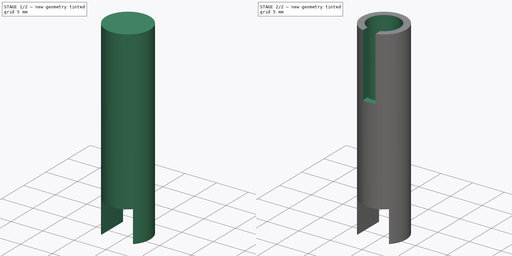
[diagram: build sequence overview — one tinted view per stage of 2, left to right]
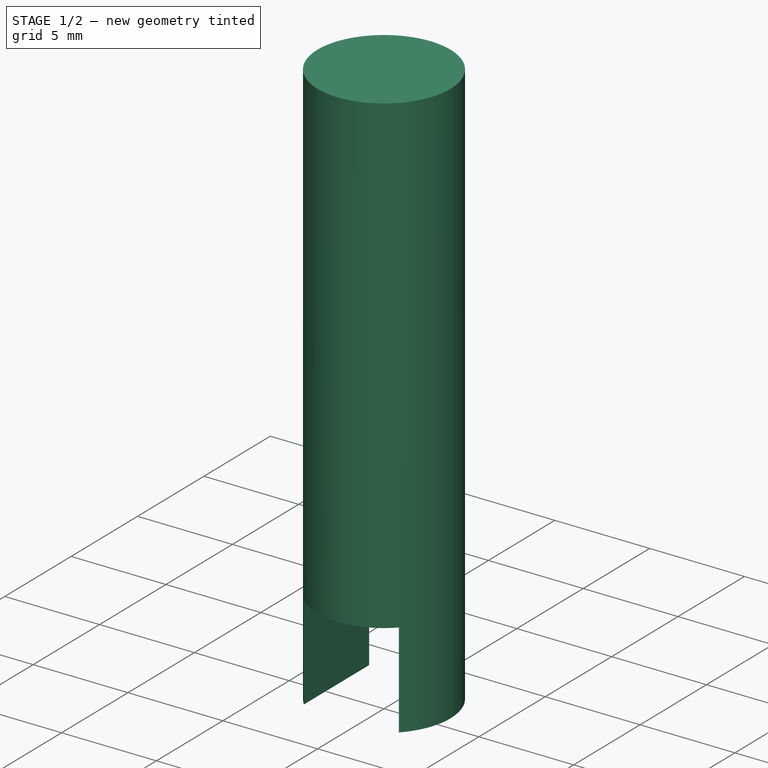
[diagram: stage 1 of 2 — iso view after this stage's code; geometry added in this stage tinted green]
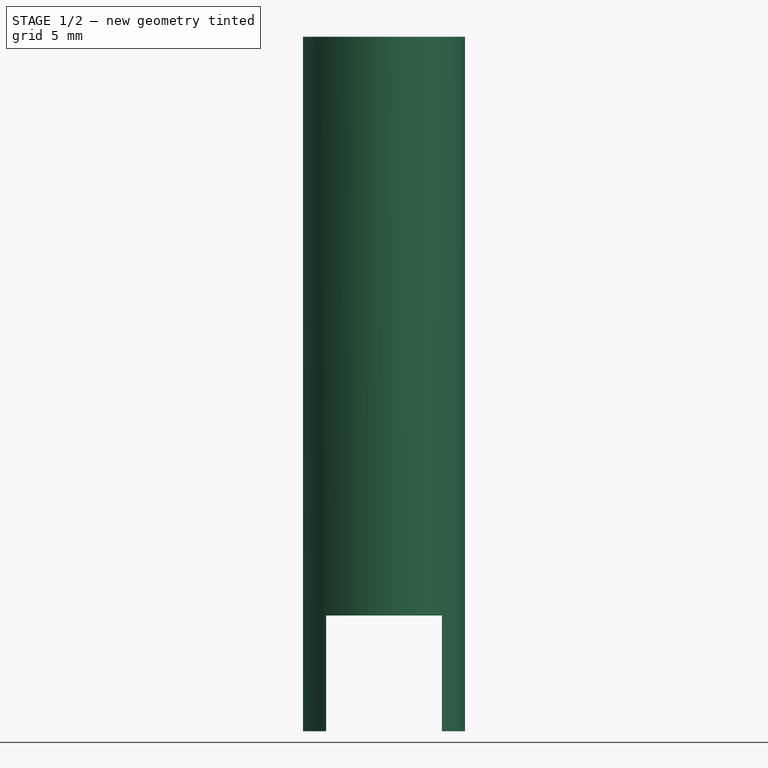
[diagram: stage 1 of 2 — front view after this stage's code; geometry added in this stage tinted green]
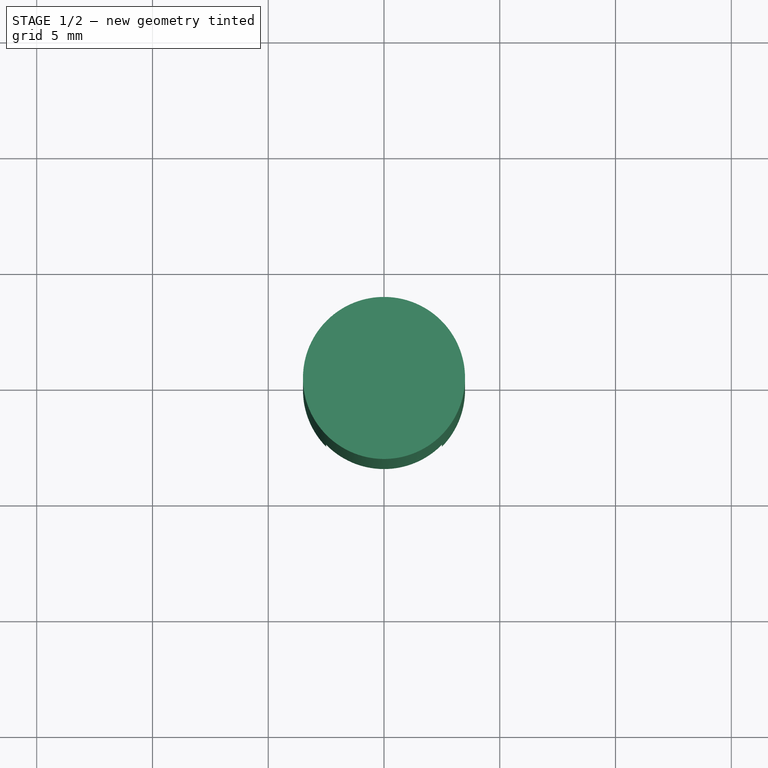
[diagram: stage 1 of 2 — top view after this stage's code; geometry added in this stage tinted green]
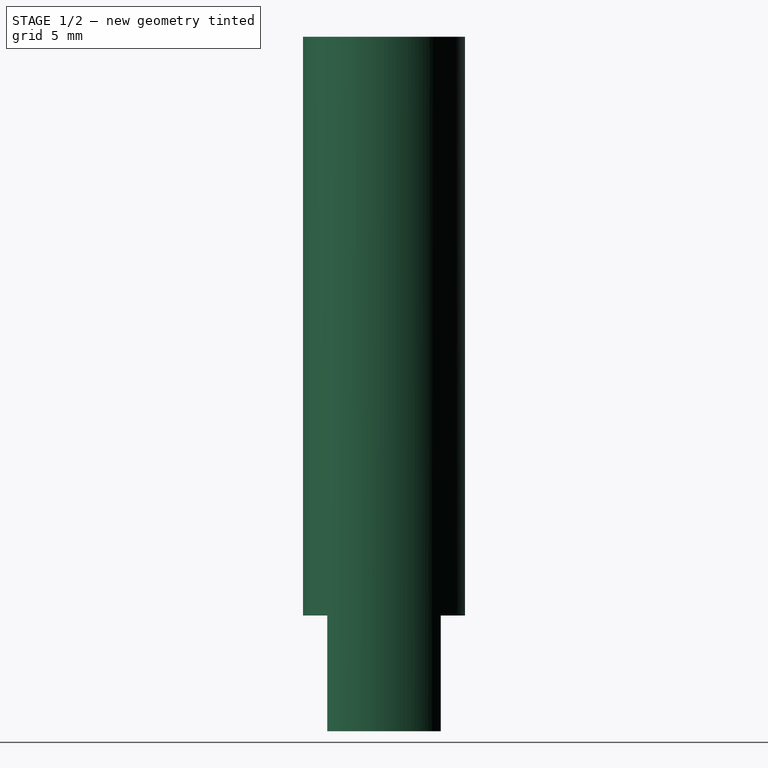
[diagram: stage 1 of 2 — right view after this stage's code; geometry added in this stage tinted green]
FCSTD DOCUMENT  (FreeCAD 0.16R6712 (Git))
Label: Assemblage3
License: All rights reserved
LicenseURL: http://en.wikipedia.org/wiki/All_rights_reserved
objects: Sketcher::SketchObject×5, PartDesign::Pocket×3, PartDesign::Pad×1
note: 13 computed .brp shape members not serialized (recipe doc carries the construction recipe); baked Part::Feature solids carry a one-line shape summary decoded from their .brp

FEATURE [Sketcher::SketchObject] Sketch
  sketch-geometry (1):
    g0: Circle CenterX=0 CenterY=0 CenterZ=0 NormalX=0 NormalY=0 NormalZ=1 Radius=3.5
  constraints (2):
    c: Coincident(g0,g-1)
    c: Radius(g0) = 3.5
FEATURE [PartDesign::Pad] Pad
  Length = 30
  Length2 = 100
  Sketch = -> Sketch
  Type = 0
FEATURE [Sketcher::SketchObject] Sketch001
  Placement = pos=(0,0,0) rot=(1,0,0;3.14159rad)
  Support = -> Pad [Face2]
  sketch-geometry (6):
    g0: LineSegment StartX=-2.5 StartY=5 StartZ=0 EndX=2.5 EndY=5 EndZ=0
    g1: LineSegment StartX=2.5 StartY=5 StartZ=0 EndX=2.5 EndY=-5 EndZ=0
    g2: LineSegment StartX=2.5 StartY=-5 StartZ=0 EndX=-2.5 EndY=-5 EndZ=0
    g3: LineSegment StartX=-2.5 StartY=-5 StartZ=0 EndX=-2.5 EndY=5 EndZ=0
    g4: LineSegment [constr] StartX=0 StartY=0 StartZ=0 EndX=-2.5 EndY=0 EndZ=0
    g5: LineSegment [constr] StartX=0 StartY=0 StartZ=0 EndX=2.5 EndY=0 EndZ=0
  constraints (13):
    c: Coincident(g0,g1)
    c: Coincident(g1,g2)
    c: Coincident(g2,g3)
    c: Coincident(g3,g0)
    c: Horizontal(g0)
    c: Horizontal(g2)
    c: Vertical(g1)
    c: Vertical(g3)
    c: Coincident(g4,g-1)
    c: PointOnObject(g4,g3)
    c: Horizontal(g4)
    c: Coincident(g5,g-1)
    c: Horizontal(g5)
FEATURE [PartDesign::Pocket] Pocket
  Length = 5
  Sketch = -> Sketch001
  Type = 0
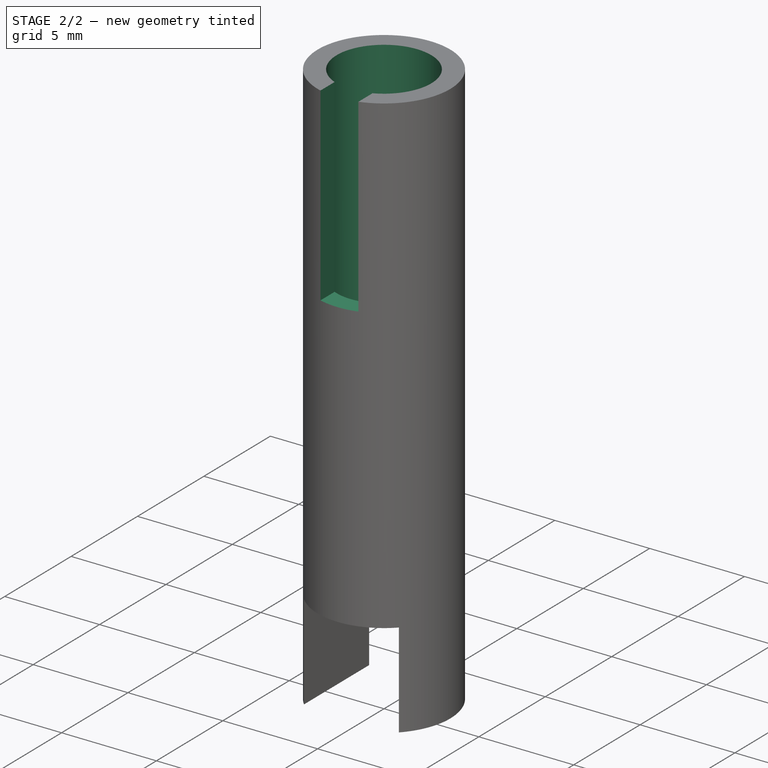
[diagram: stage 2 of 2 — iso view after this stage's code; geometry added in this stage tinted green]
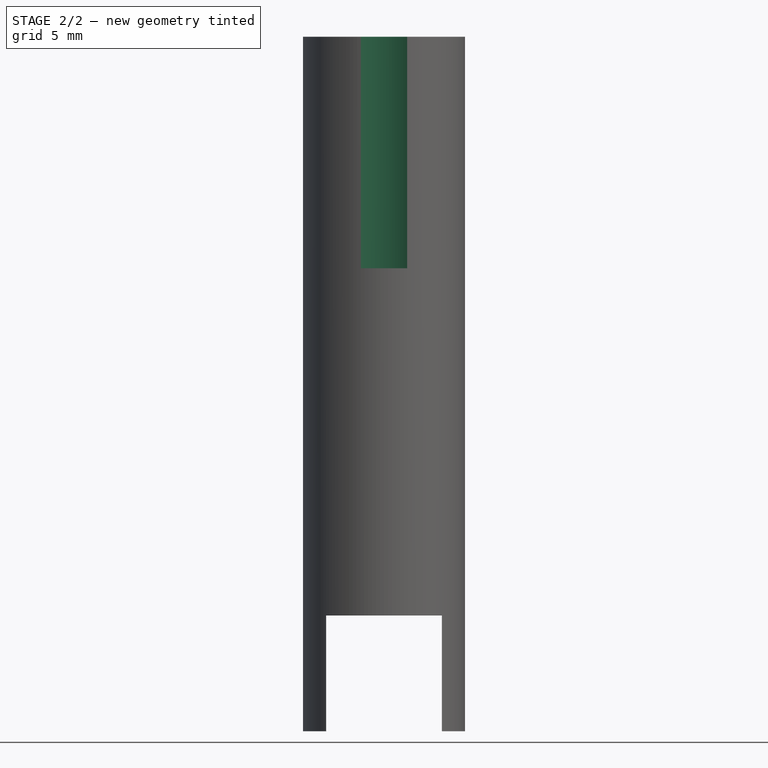
[diagram: stage 2 of 2 — front view after this stage's code; geometry added in this stage tinted green]
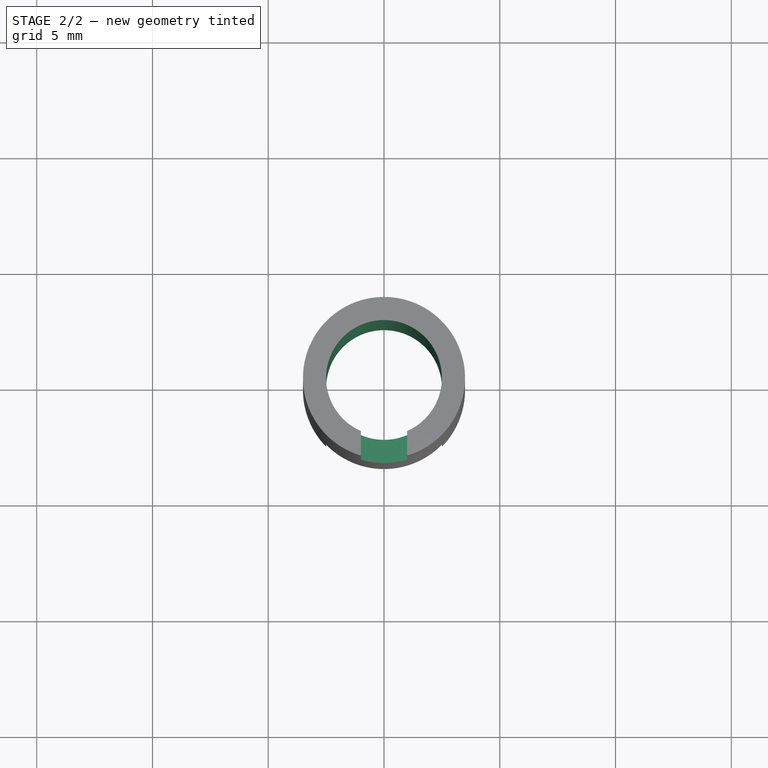
[diagram: stage 2 of 2 — top view after this stage's code; geometry added in this stage tinted green]
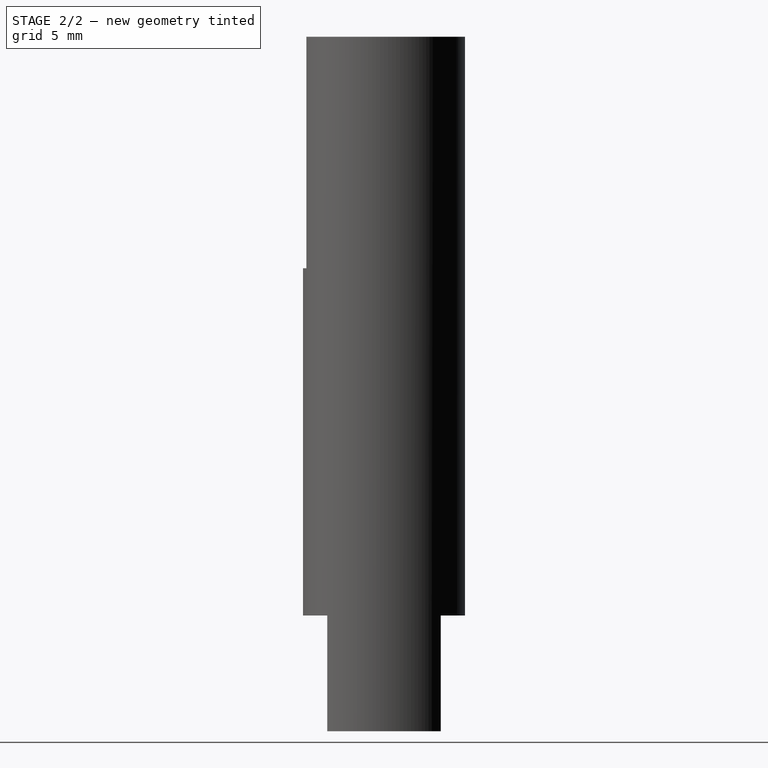
[diagram: stage 2 of 2 — right view after this stage's code; geometry added in this stage tinted green]
FEATURE [Sketcher::SketchObject] Sketch002
  Placement = pos=(0,0,30) rot=(0,0,1;0rad)
  Support = -> Pocket [Face7]
  sketch-geometry (1):
    g0: Circle CenterX=0 CenterY=0 CenterZ=0 NormalX=0 NormalY=0 NormalZ=1 Radius=2.5
  constraints (2):
    c: Coincident(g0,g-1)
    c: Radius(g0) = 2.5
FEATURE [PartDesign::Pocket] Pocket001
  Length = 5
  Sketch = -> Sketch002
  Type = 1
FEATURE [Sketcher::SketchObject] Sketch003
  Placement = pos=(0,0,30) rot=(0,0,1;0rad)
  Support = -> Pocket001 [Face10]
  sketch-geometry (8):
    g0: LineSegment StartX=-1 StartY=-1.67736 StartZ=0 EndX=1 EndY=-1.67736 EndZ=0
    g1: LineSegment StartX=1 StartY=-1.67736 StartZ=0 EndX=1 EndY=-4.15853 EndZ=0
    g2: LineSegment StartX=1 StartY=-4.15853 StartZ=0 EndX=-1 EndY=-4.15853 EndZ=0
    g3: LineSegment StartX=-1 StartY=-4.15853 StartZ=0 EndX=-1 EndY=-1.67736 EndZ=0
    g4: LineSegment [constr] StartX=-1 StartY=-4.15853 StartZ=0 EndX=1 EndY=-1.67736 EndZ=0
    g5: LineSegment [constr] StartX=-1 StartY=-1.67736 StartZ=0 EndX=1 EndY=-4.15853 EndZ=0
    g6: GeomPoint [constr] X=0 Y=-2.91795 Z=0
    g7: GeomPoint [constr] X=0 Y=-2.91795 Z=0
  constraints (17):
    c: Coincident(g0,g1)
    c: Coincident(g1,g2)
    c: Coincident(g2,g3)
    c: Coincident(g3,g0)
    c: Horizontal(g0)
    c: Horizontal(g2)
    c: Vertical(g1)
    c: Vertical(g3)
    c: DistanceX(g0,g0) = 2
    c: Coincident(g4,g2)
    c: Coincident(g4,g0)
    c: Coincident(g5,g0)
    c: Coincident(g5,g1)
    c: PointOnObject(g6,g5)
    c: PointOnObject(g7,g4)
    c: Coincident(g6,g7)
    c: PointOnObject(g6,g-2)
FEATURE [PartDesign::Pocket] Pocket003
  Length = 10
  Sketch = -> Sketch003
  Type = 0
FEATURE [Sketcher::SketchObject] Sketch004
  Placement = pos=(0,0,30) rot=(0,0,1;0rad)
  Support = -> Pocket003 [Face2]
  sketch-geometry (1):
    g0: Circle CenterX=0 CenterY=0 CenterZ=0 NormalX=0 NormalY=0 NormalZ=1 Radius=2.4
  constraints (2):
    c: Coincident(g0,g-1)
    c: Radius(g0) = 2.4
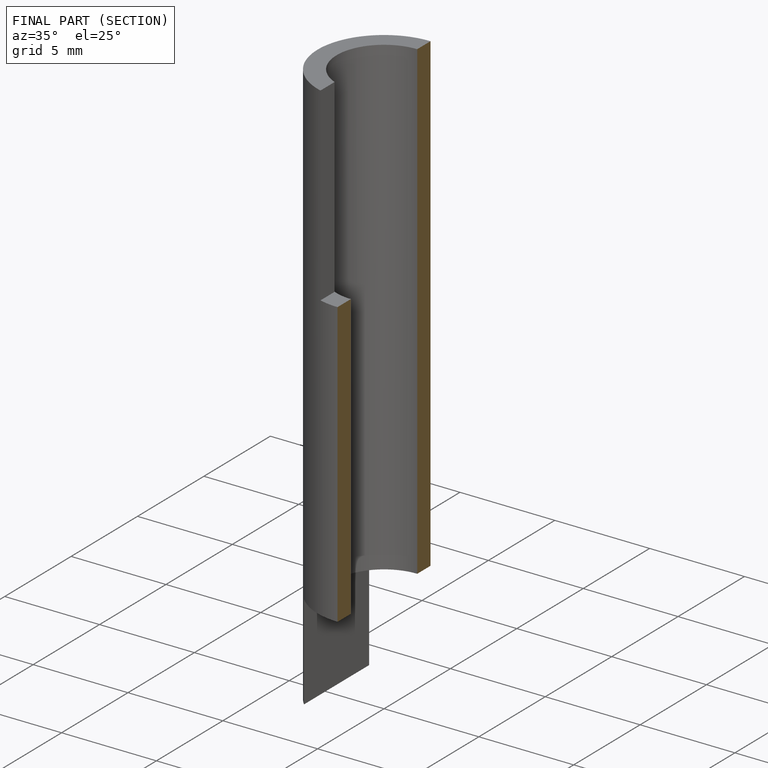
[diagram: finished part — half-section view (interior)]
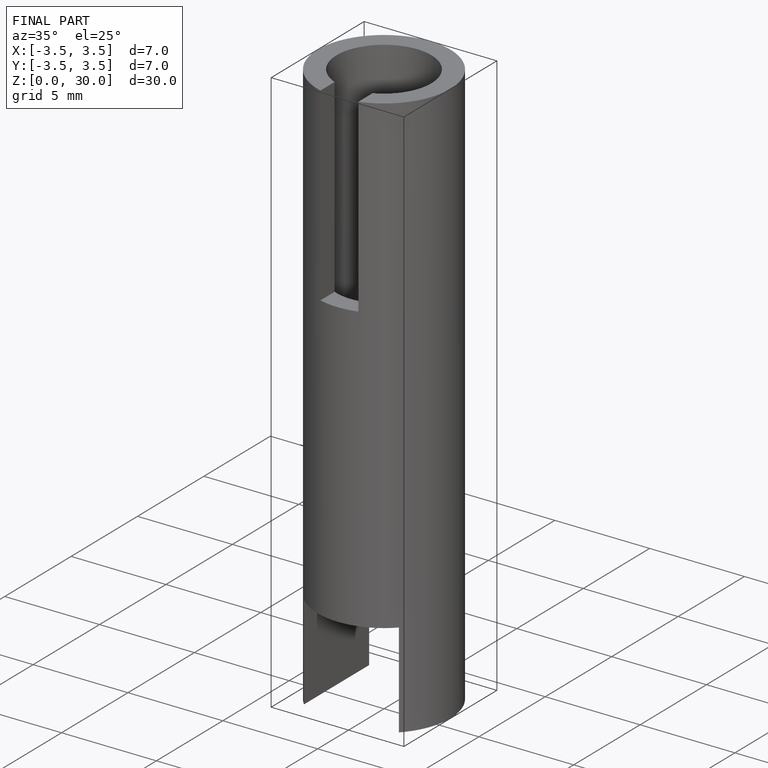
[diagram: finished part — iso view with bounding-box wireframe]
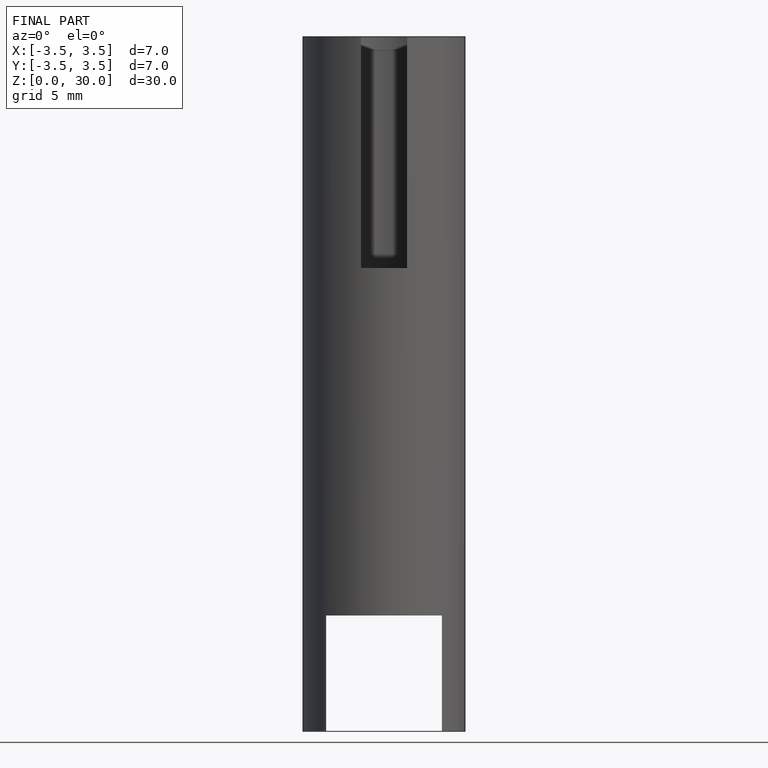
[diagram: finished part — front view with bounding-box wireframe]
